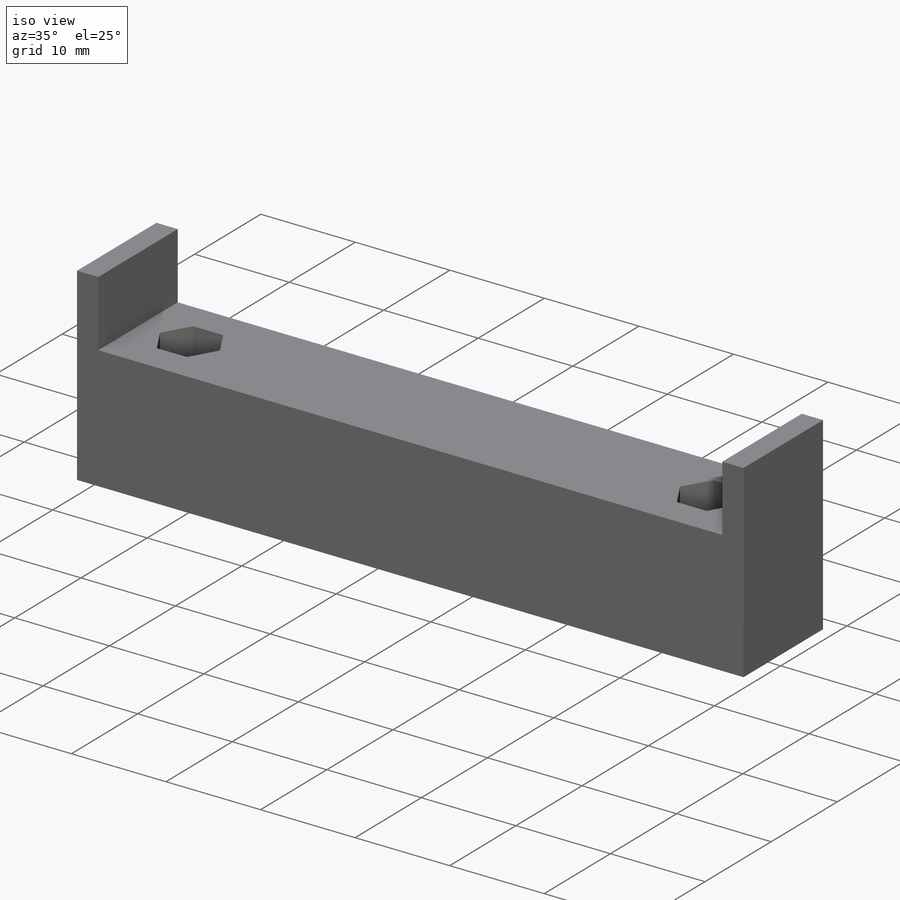
[diagram: iso view]
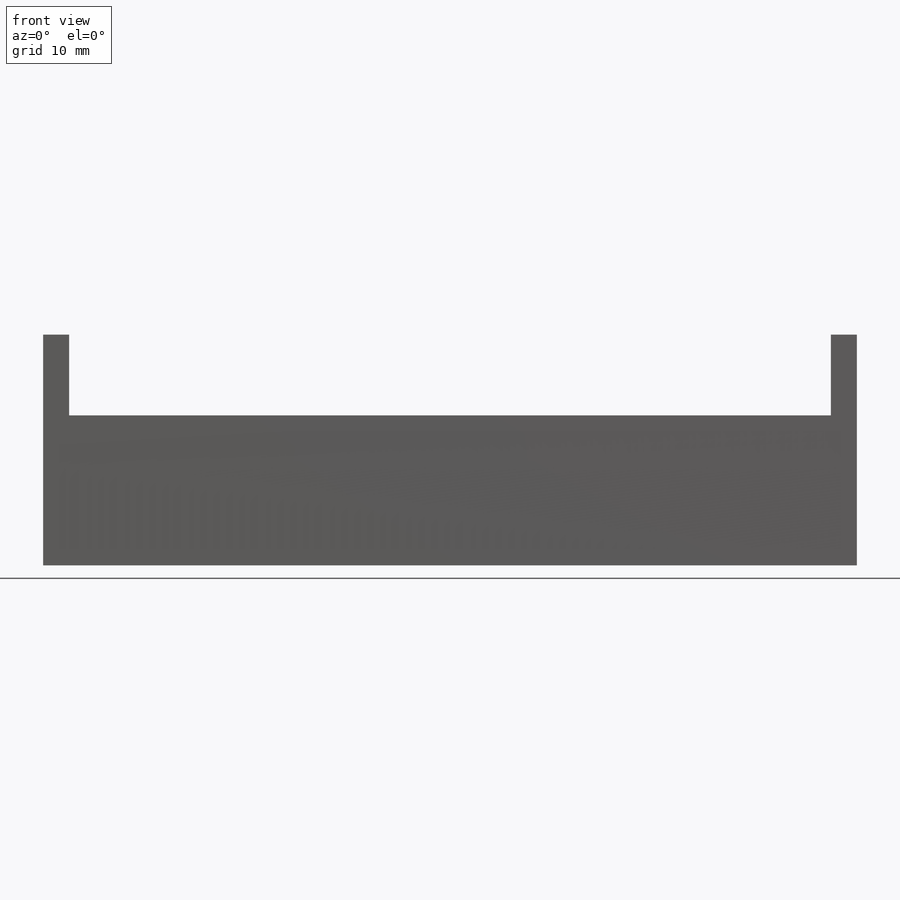
[diagram: front view]
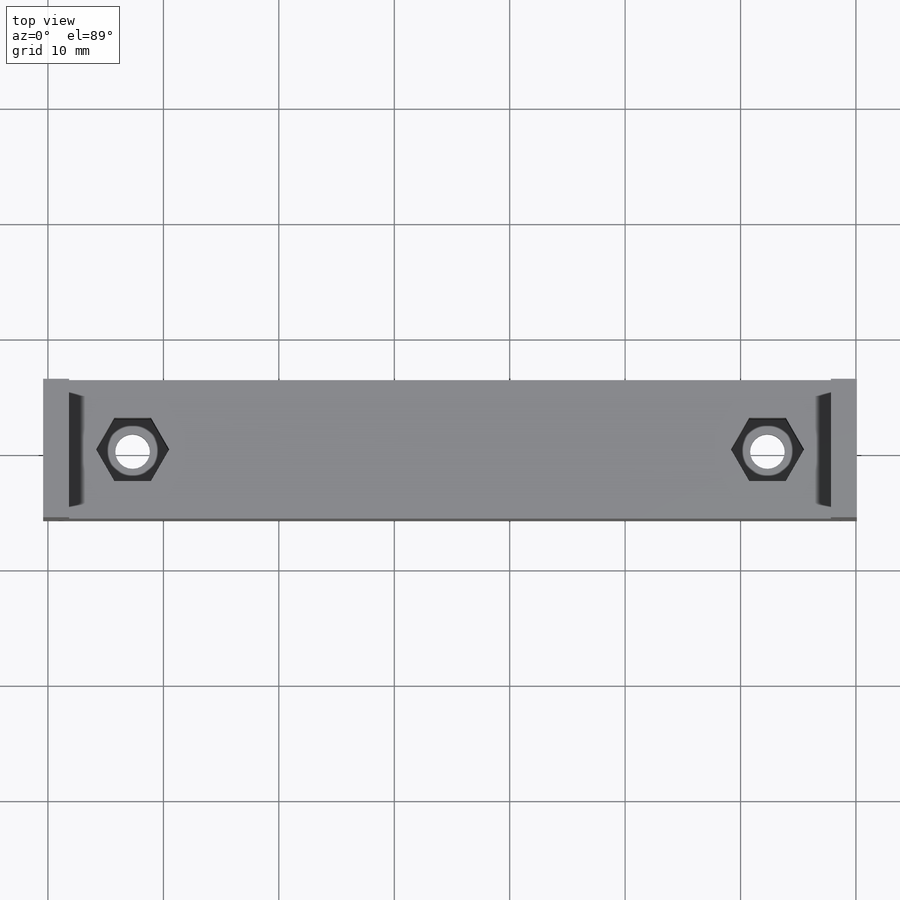
[diagram: top view]
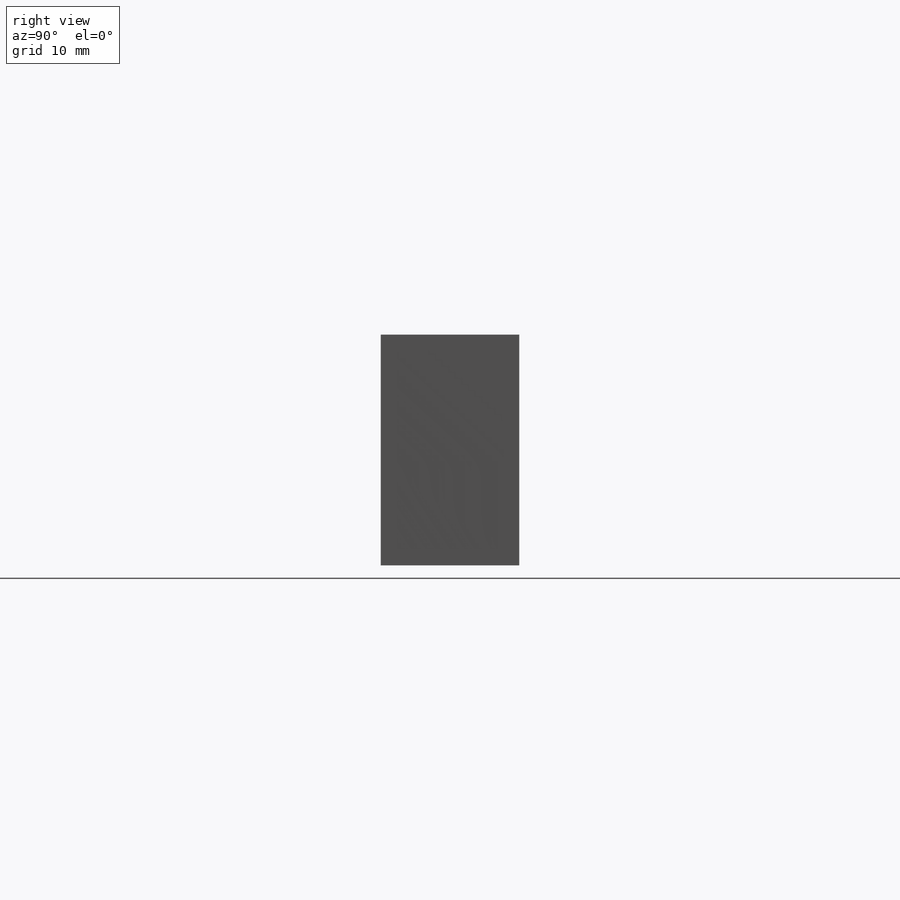
[diagram: right view]
SOLIDWORKS PART (.sldprt)
format: sldprt  version: not decoded by parser v0  size: 491,008 bytes
history: native  units: mm
features: sketch x26, cut_extrude x14, extrude x12, plane x3, material x1 (+9 scaffold rows collapsed)
feature tree (65):
  scaffold x9  (default folders/planes/origin — collapsed)
  material  "材质 <未指定>"
  plane  "前视基准面"
  plane  "上视基准面"
  plane  "右视基准面"
  sketch  "草图1"  dims[D1=12.0mm D2=65.0mm]
  extrude  "凸台-拉伸1"  Depth=3mm
  sketch  "草图2"  dims[D1=12.0mm D2=8.0mm]
  extrude  "凸台-拉伸2"  Depth=2mm
  sketch  "草图3"  dims[D1=12.0mm D2=8.0mm]
  extrude  "凸台-拉伸3"  Depth=2mm
  sketch  "草图4"  dims[D2=9.0mm D1=27.5mm D3=6.0mm]
  extrude  "凸台-拉伸4"  Depth=5mm
  sketch  "草图6"  dims[D1=5.0mm D2=5.5mm]
  sketch  "草图8"  dims[D1=69.0mm]
  extrude  "凸台-拉伸7"  Depth=1mm
  cut_extrude  "切除-拉伸1"  Depth=2.5mm
  sketch  "草图10"  dims[D1=3.0mm]
  cut_extrude  "切除-拉伸2"  Depth=2.5mm
  sketch  "草图11"  dims[D1=5.0mm D2=5.5mm]
  cut_extrude  "切除-拉伸3"  Depth=2.5mm
  sketch  "草图12"  dims[D1=3.0mm]
  cut_extrude  "切除-拉伸4"  Depth=2.5mm
  sketch  "草图13"  dims[D1=8.0mm]
  cut_extrude  "切除-拉伸7"  Depth=5mm
  sketch  "草图15"  dims[D1=12.0mm]
  cut_extrude  "切除-拉伸8"  Depth=0.5mm
  sketch  "草图16"  dims[D1=12.0mm]
  cut_extrude  "切除-拉伸9"  Depth=0.5mm
  sketch  "草图17"  dims[D1=5.0mm D2=12.0mm]
  cut_extrude  "切除-拉伸10"  Depth=0.25mm
  sketch  "草图18"  dims[D1=12.0mm]
  cut_extrude  "切除-拉伸11"  Depth=0.25mm
  sketch  "草图19"  dims[D1=12.0mm]
  extrude  "凸台-拉伸8"  Depth=0.75mm
  sketch  "草图20"  dims[D1=~11.996068mm]
  extrude  "凸台-拉伸9"  Depth=0.75mm
  sketch  "草图21"
  cut_extrude  "切除-拉伸12"  Depth=5mm
  sketch  "草图22"  dims[D1=2.0mm]
  extrude  "凸台-拉伸10"  Depth=2mm
  sketch  "草图23"  dims[D1=2.0mm]
  extrude  "凸台-拉伸11"  Depth=2mm
  sketch  "草图25"  dims[c1.D1=7.0mm c2.D1=~30.196876deg]
  extrude  "凸台-拉伸12"  Depth=0.25mm
  sketch  "草图26"  dims[D1=12.0mm]
  extrude  "凸台-拉伸13"  Depth=0.25mm
  sketch  "草图27"  dims[D1=12.0mm]
  extrude  "凸台-拉伸14"  Depth=9mm
  sketch  "草图28"  dims[D1=~3.175426mm]
  cut_extrude  "切除-拉伸15"  Depth=8mm
  sketch  "草图29"
  cut_extrude  "切除-拉伸16"  Depth=8mm
  sketch  "草图30"  dims[D1=3.0mm]
  cut_extrude  "切除-拉伸17"  Depth=2.5mm
  sketch  "草图31"  dims[D1=3.0mm D2=~6.350853mm]
  cut_extrude  "切除-拉伸18"  Depth=2.5mm
decode coverage: 50 of 52 modeling features carry decoded parameters
note: ~ marks probable driven/reference dimensions
note: suppression state not decoded; provenance and decode notes live in map.json
